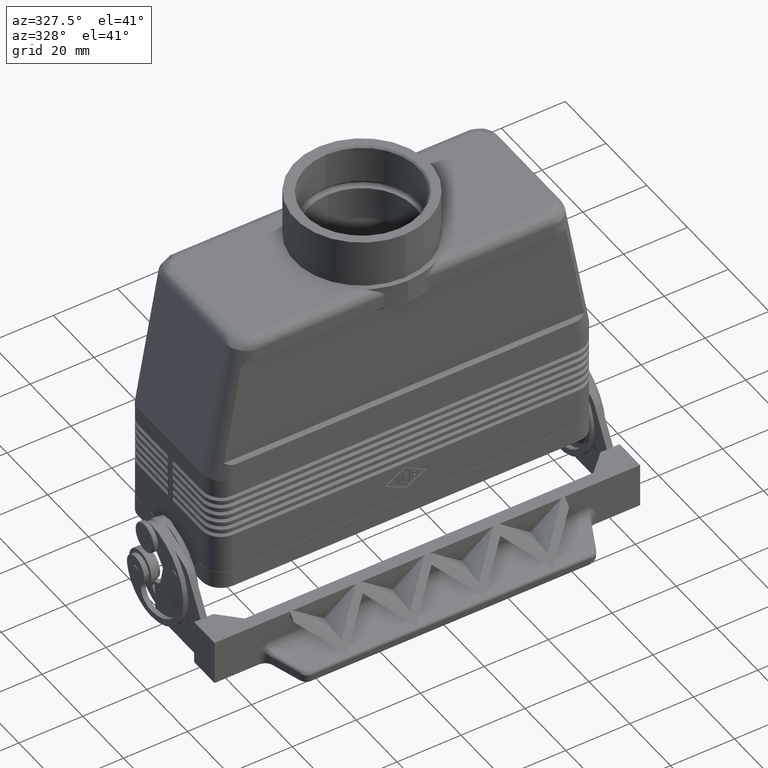
[diagram: clean part render]
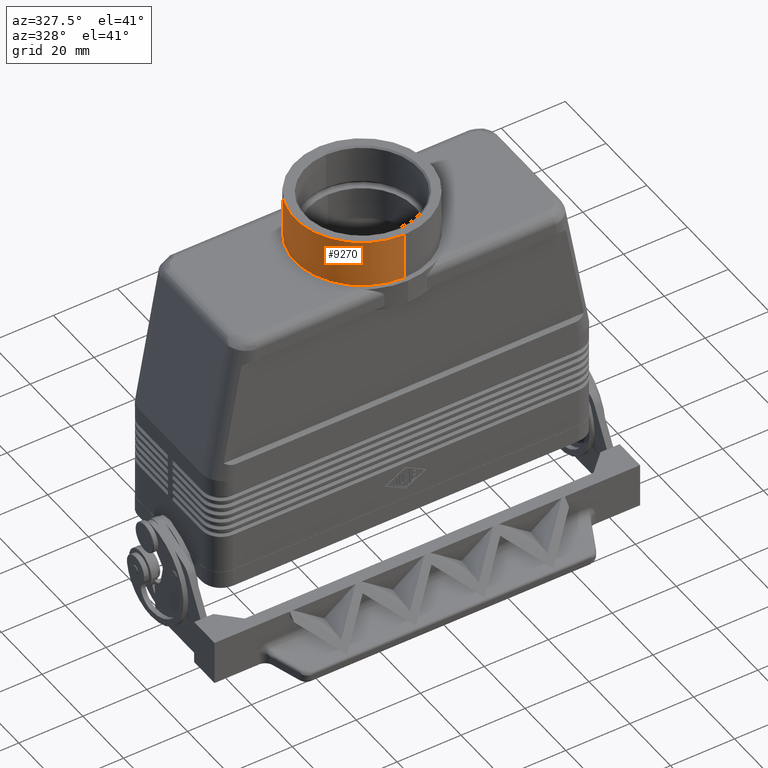
[diagram: same view with one face highlighted and labeled with its STEP entity id]
A machine part, auxiliary view. The second image highlights one B-rep face of the part: STEP entity #9270.
In plain terms, the highlighted cylindrical surface (partial cylindrical patch) has radius 21 mm, axis along (0, 0, -1).
Its self-contained STEP definition (entity closure, byte-faithful):
#8862=CARTESIAN_POINT('',(0.0,20.999999999999993,97.0));
#8863=VERTEX_POINT('',#8862);
#8864=CARTESIAN_POINT('',(0.0,20.999999999999993,82.000000000000014));
#8865=VERTEX_POINT('',#8864);
#8866=CARTESIAN_POINT('',(0.0,20.999999999999993,97.0));
#8867=DIRECTION('',(0.0,0.0,-1.0));
#8868=VECTOR('',#8867,14.999999999999986);
#8869=LINE('',#8866,#8868);
#8870=EDGE_CURVE('',#8863,#8865,#8869,.T.);
#8872=CARTESIAN_POINT('',(2.571673E-015,-20.999999999999993,97.0));
#8873=VERTEX_POINT('',#8872);
#8881=CARTESIAN_POINT('',(2.571673E-015,-20.999999999999993,82.0));
#8882=VERTEX_POINT('',#8881);
#8883=CARTESIAN_POINT('',(2.571673E-015,-20.999999999999993,82.0));
#8884=DIRECTION('',(0.0,0.0,1.0));
#8885=VECTOR('',#8884,15.0);
#8886=LINE('',#8883,#8885);
#8887=EDGE_CURVE('',#8882,#8873,#8886,.T.);
#9239=CARTESIAN_POINT('',(0.0,3.697785E-031,97.0));
#9240=DIRECTION('',(0.0,0.0,-1.0));
#9241=DIRECTION('',(0.0,1.0,0.0));
#9242=AXIS2_PLACEMENT_3D('',#9239,#9240,#9241);
#9243=CIRCLE('',#9242,20.999999999999993);
#9244=EDGE_CURVE('',#8873,#8863,#9243,.T.);
#9253=CARTESIAN_POINT('',(0.0,2.575260E-016,89.500000000000000));
#9254=DIRECTION('',(0.0,3.433679E-017,-1.0));
#9255=DIRECTION('',(0.0,1.0,0.0));
#9256=AXIS2_PLACEMENT_3D('',#9253,#9254,#9255);
#9257=CYLINDRICAL_SURFACE('',#9256,20.999999999999993);
#9258=ORIENTED_EDGE('',*,*,#8870,.T.);
#9259=CARTESIAN_POINT('',(0.0,5.150519E-016,82.000000000000014));
#9260=DIRECTION('',(0.0,0.0,-1.0));
#9261=DIRECTION('',(0.0,1.0,0.0));
#9262=AXIS2_PLACEMENT_3D('',#9259,#9260,#9261);
#9263=CIRCLE('',#9262,20.999999999999993);
#9264=EDGE_CURVE('',#8882,#8865,#9263,.T.);
#9265=ORIENTED_EDGE('',*,*,#9264,.F.);
#9266=ORIENTED_EDGE('',*,*,#8887,.T.);
#9267=ORIENTED_EDGE('',*,*,#9244,.T.);
#9268=EDGE_LOOP('',(#9258,#9265,#9266,#9267));
#9269=FACE_OUTER_BOUND('',#9268,.T.);
#9270=ADVANCED_FACE('',(#9269),#9257,.T.);